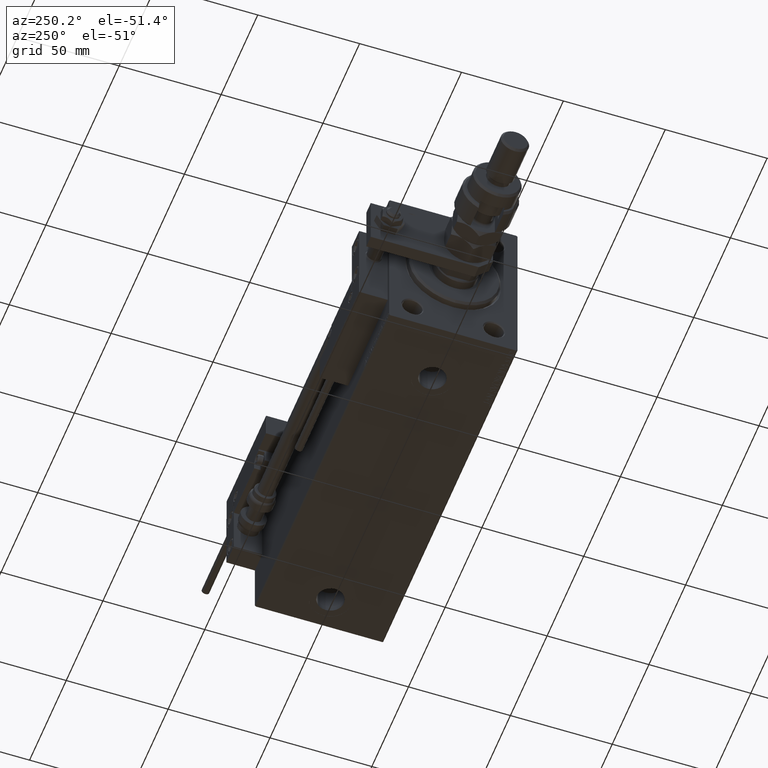
[diagram: clean part render]
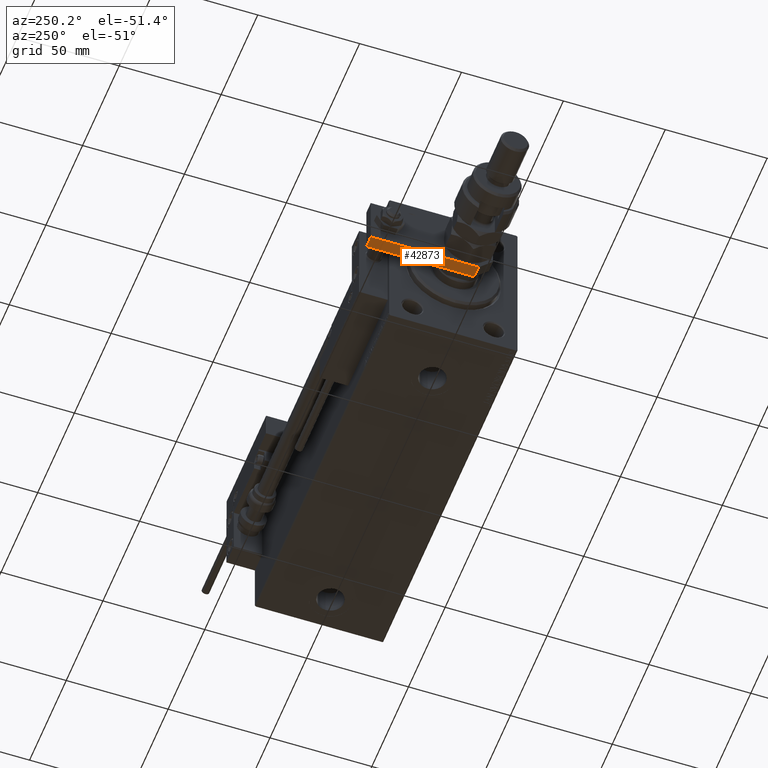
[diagram: same view with one face highlighted and labeled with its STEP entity id]
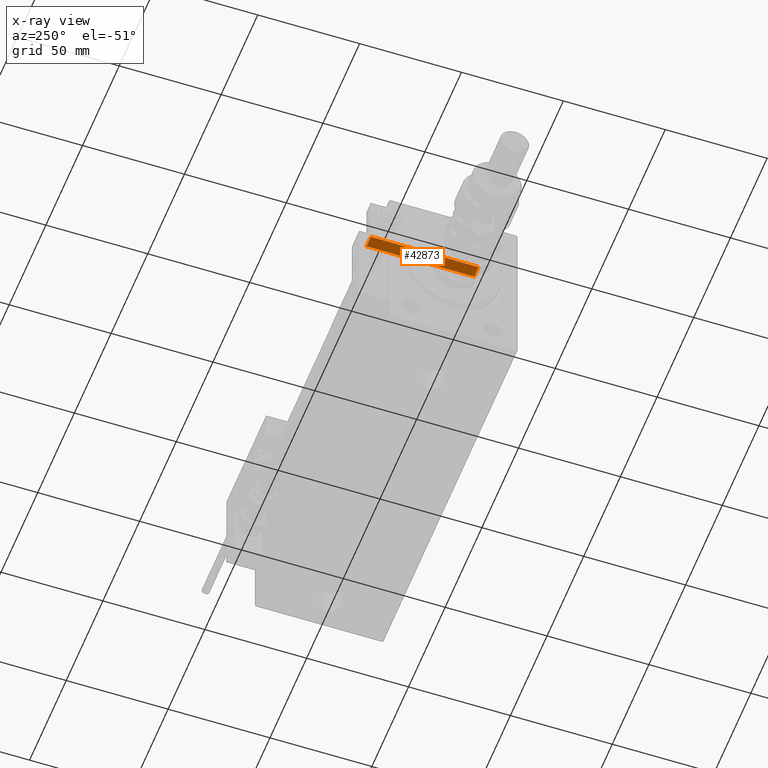
[diagram: x-ray of the same camera — body ghosted, the highlighted face saturated]
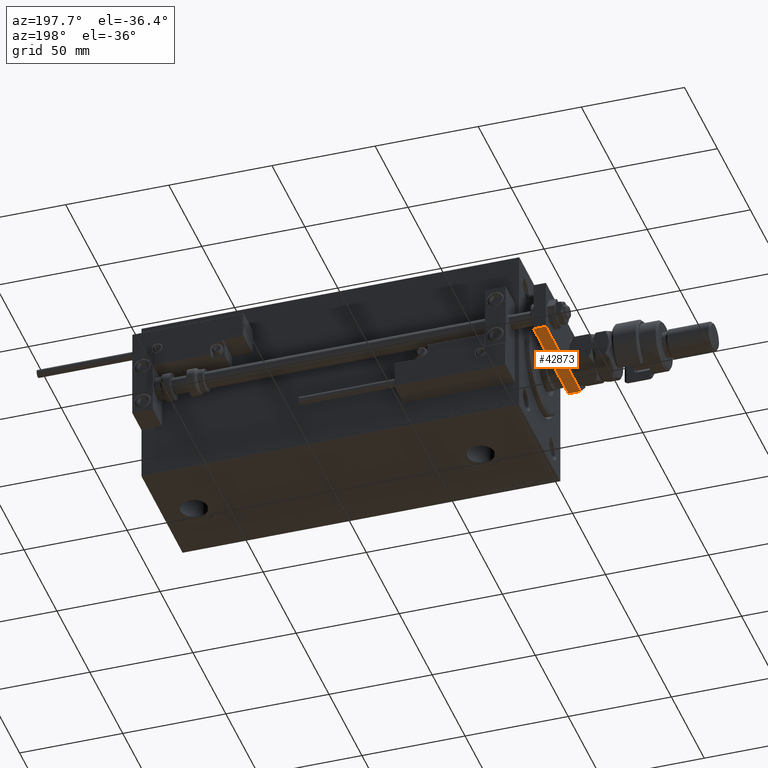
[diagram: same view with one face highlighted and labeled with its STEP entity id]
A machine part, auxiliary view. The second image highlights one B-rep face of the part: STEP entity #42873.
The next image is the same camera in x-ray: the body ghosted, the highlighted face saturated — about 0% of this face is hidden behind the body in this view.
A second angle (auxiliary view) of the same face is appended — the face is thin or edge-on in the first view.
In plain terms, the highlighted planar face has unit normal (0, -0, 1).
Its self-contained STEP definition (entity closure, byte-faithful):
#3097 = DIRECTION ( 'NONE',  ( -8.673617379884035472E-17, -1.000000000000000000, 0.000000000000000000 ) ) ;
#5503 = VERTEX_POINT ( 'NONE', #38297 ) ;
#7747 = VECTOR ( 'NONE', #54230, 1000.000000000000000 ) ;
#7849 = EDGE_CURVE ( 'NONE', #43846, #33008, #17176, .T. ) ;
#9316 = CARTESIAN_POINT ( 'NONE',  ( -12.49999999999999822, 60.00000000000000000, 0.000000000000000000 ) ) ;
#13167 = FACE_OUTER_BOUND ( 'NONE', #48674, .T. ) ;
#13611 = ORIENTED_EDGE ( 'NONE', *, *, #51789, .F. ) ;
#16130 = VECTOR ( 'NONE', #34245, 1000.000000000000000 ) ;
#17176 = LINE ( 'NONE', #9316, #16130 ) ;
#17464 = VERTEX_POINT ( 'NONE', #46444 ) ;
#17512 = EDGE_CURVE ( 'NONE', #33008, #5503, #47268, .T. ) ;
#23498 = CARTESIAN_POINT ( 'NONE',  ( -12.50000000000000355, 7.000000000000013323, 0.000000000000000000 ) ) ;
#24240 = LINE ( 'NONE', #40782, #7747 ) ;
#25150 = CARTESIAN_POINT ( 'NONE',  ( -12.50000000000000355, 7.000000000000013323, 6.000000000000000000 ) ) ;
#25221 = CARTESIAN_POINT ( 'NONE',  ( -12.49999999999999822, 60.00000000000000000, 6.000000000000000000 ) ) ;
#25351 = VECTOR ( 'NONE', #3097, 1000.000000000000000 ) ;
#29339 = ORIENTED_EDGE ( 'NONE', *, *, #17512, .T. ) ;
#29622 = DIRECTION ( 'NONE',  ( 0.000000000000000000, 0.000000000000000000, 1.000000000000000000 ) ) ;
#29693 = PLANE ( 'NONE',  #53706 ) ;
#31224 = EDGE_CURVE ( 'NONE', #17464, #43846, #24240, .T. ) ;
#32767 = CARTESIAN_POINT ( 'NONE',  ( -12.49999999999999822, 60.00000000000000000, 6.000000000000000000 ) ) ;
#33008 = VERTEX_POINT ( 'NONE', #23498 ) ;
#34245 = DIRECTION ( 'NONE',  ( -8.673617379884035472E-17, -1.000000000000000000, 0.000000000000000000 ) ) ;
#38297 = CARTESIAN_POINT ( 'NONE',  ( -12.50000000000000355, 7.000000000000013323, 6.000000000000000000 ) ) ;
#38574 = ORIENTED_EDGE ( 'NONE', *, *, #7849, .T. ) ;
#39043 = ORIENTED_EDGE ( 'NONE', *, *, #31224, .T. ) ;
#39927 = VECTOR ( 'NONE', #29622, 1000.000000000000000 ) ;
#40782 = CARTESIAN_POINT ( 'NONE',  ( -12.49999999999999822, 60.00000000000000000, 6.000000000000000000 ) ) ;
#41180 = LINE ( 'NONE', #32767, #25351 ) ;
#42325 = DIRECTION ( 'NONE',  ( 1.000000000000000000, -8.673617379884034239E-17, 0.000000000000000000 ) ) ;
#42873 = ADVANCED_FACE ( 'NONE', ( #13167 ), #29693, .F. ) ;
#43846 = VERTEX_POINT ( 'NONE', #50545 ) ;
#46444 = CARTESIAN_POINT ( 'NONE',  ( -12.49999999999999822, 60.00000000000000000, 6.000000000000000000 ) ) ;
#46793 = DIRECTION ( 'NONE',  ( 8.673617379884034239E-17, 1.000000000000000000, 0.000000000000000000 ) ) ;
#47268 = LINE ( 'NONE', #25150, #39927 ) ;
#48674 = EDGE_LOOP ( 'NONE', ( #38574, #29339, #13611, #39043 ) ) ;
#50545 = CARTESIAN_POINT ( 'NONE',  ( -12.49999999999999822, 60.00000000000000000, 0.000000000000000000 ) ) ;
#51789 = EDGE_CURVE ( 'NONE', #17464, #5503, #41180, .T. ) ;
#53706 = AXIS2_PLACEMENT_3D ( 'NONE', #25221, #42325, #46793 ) ;
#54230 = DIRECTION ( 'NONE',  ( -0.000000000000000000, -0.000000000000000000, -1.000000000000000000 ) ) ;